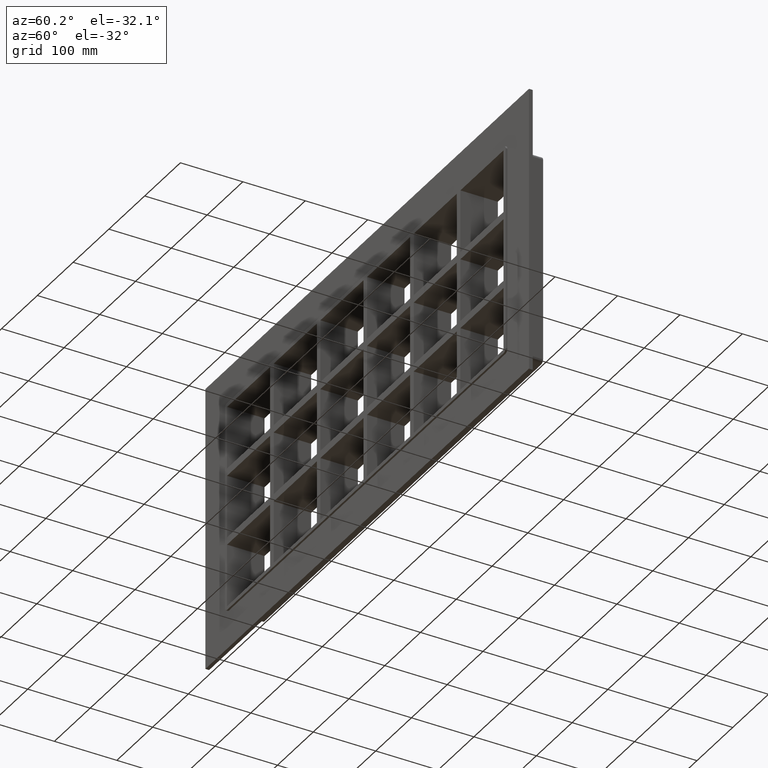
[diagram: clean part render]
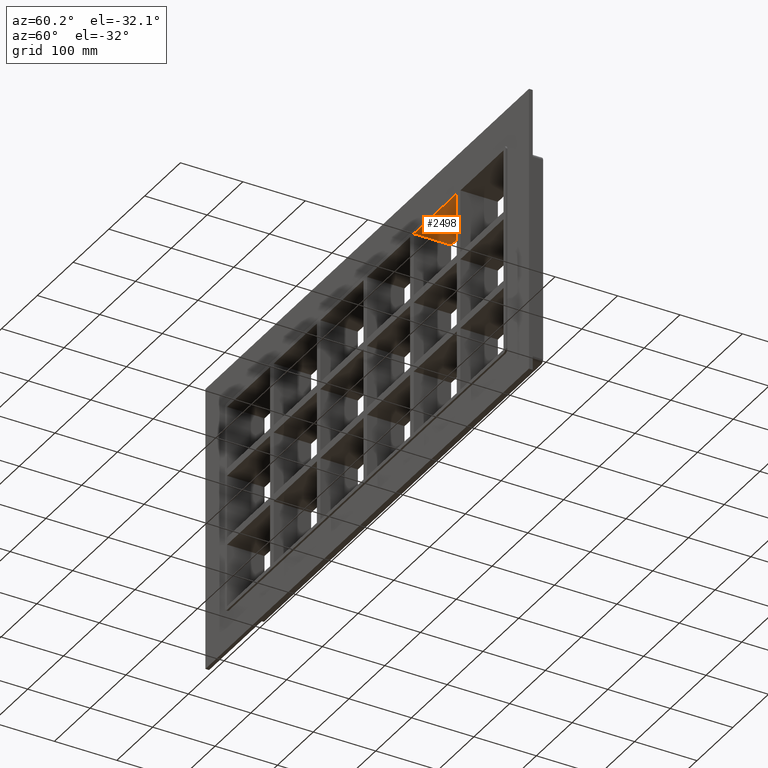
[diagram: same view with one face highlighted and labeled with its STEP entity id]
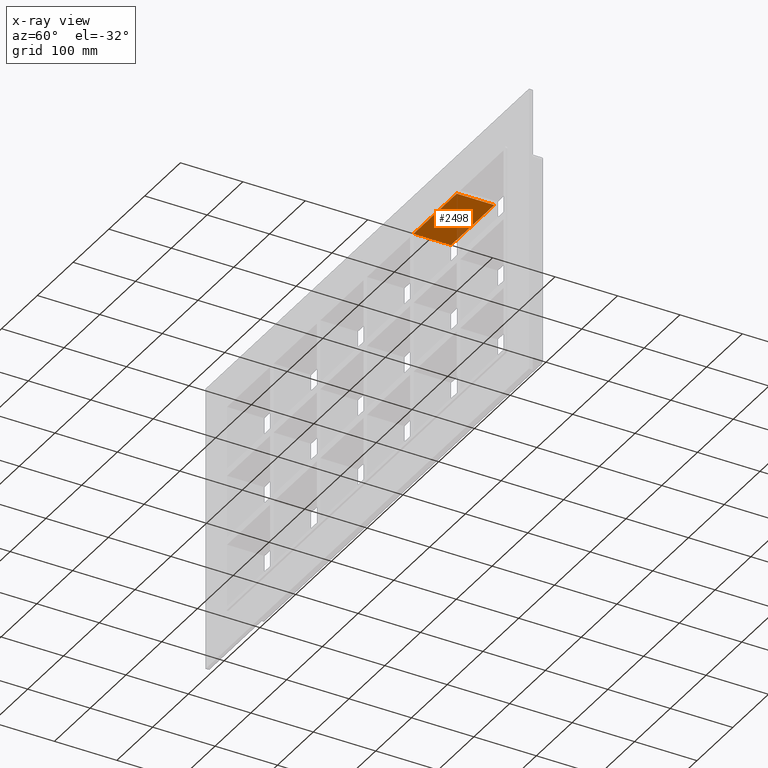
[diagram: x-ray of the same camera — body ghosted, the highlighted face saturated]
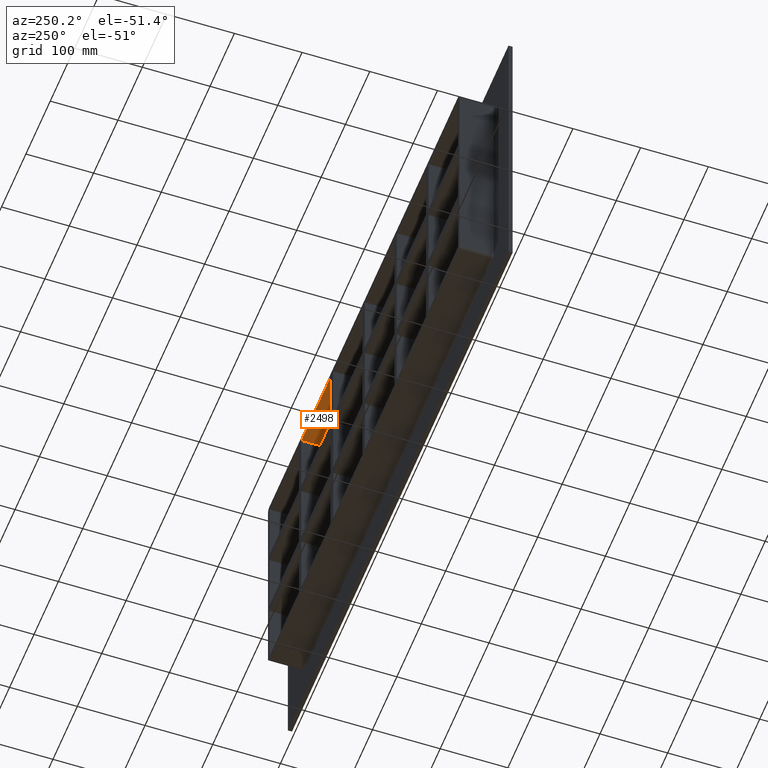
[diagram: same view with one face highlighted and labeled with its STEP entity id]
A machine part, auxiliary view. The second image highlights one B-rep face of the part: STEP entity #2498.
The next image is the same camera in x-ray: the body ghosted, the highlighted face saturated — about 4% of this face is hidden behind the body in this view.
A second angle (auxiliary view) of the same face is appended — the face is thin or edge-on in the first view.
In plain terms, the highlighted planar face has unit normal (0, 0, 1).
Its self-contained STEP definition (entity closure, byte-faithful):
#647=CARTESIAN_POINT('',(255.99999999999864,-3.0,163.5));
#648=VERTEX_POINT('',#647);
#655=CARTESIAN_POINT('',(255.99999999999864,57.0,163.5));
#656=VERTEX_POINT('',#655);
#657=CARTESIAN_POINT('',(255.99999999999869,57.000000000000007,163.5));
#658=DIRECTION('',(0.0,-1.0,0.0));
#659=VECTOR('',#658,60.000000000000007);
#660=LINE('',#657,#659);
#661=EDGE_CURVE('',#656,#648,#660,.T.);
#740=CARTESIAN_POINT('',(135.49999999999642,57.0,163.5));
#741=VERTEX_POINT('',#740);
#748=CARTESIAN_POINT('',(135.49999999999642,-3.0,163.5));
#749=VERTEX_POINT('',#748);
#750=CARTESIAN_POINT('',(135.49999999999642,-3.0,163.5));
#751=DIRECTION('',(0.0,1.0,0.0));
#752=VECTOR('',#751,60.000000000000007);
#753=LINE('',#750,#752);
#754=EDGE_CURVE('',#749,#741,#753,.T.);
#1087=CARTESIAN_POINT('',(255.99999999999858,57.0,163.5));
#1088=DIRECTION('',(-1.0,0.0,0.0));
#1089=VECTOR('',#1088,120.50000000000216);
#1090=LINE('',#1087,#1089);
#1091=EDGE_CURVE('',#656,#741,#1090,.T.);
#2153=CARTESIAN_POINT('',(135.49999999999642,-3.0,163.5));
#2154=DIRECTION('',(1.0,0.0,0.0));
#2155=VECTOR('',#2154,120.50000000000216);
#2156=LINE('',#2153,#2155);
#2157=EDGE_CURVE('',#749,#648,#2156,.T.);
#2487=CARTESIAN_POINT('',(-386.50000000000011,0.0,163.5));
#2488=DIRECTION('',(0.0,0.0,1.0));
#2489=DIRECTION('',(1.0,0.0,0.0));
#2490=AXIS2_PLACEMENT_3D('',#2487,#2488,#2489);
#2491=PLANE('',#2490);
#2492=ORIENTED_EDGE('',*,*,#661,.T.);
#2493=ORIENTED_EDGE('',*,*,#2157,.F.);
#2494=ORIENTED_EDGE('',*,*,#754,.T.);
#2495=ORIENTED_EDGE('',*,*,#1091,.F.);
#2496=EDGE_LOOP('',(#2492,#2493,#2494,#2495));
#2497=FACE_OUTER_BOUND('',#2496,.T.);
#2498=ADVANCED_FACE('',(#2497),#2491,.F.);